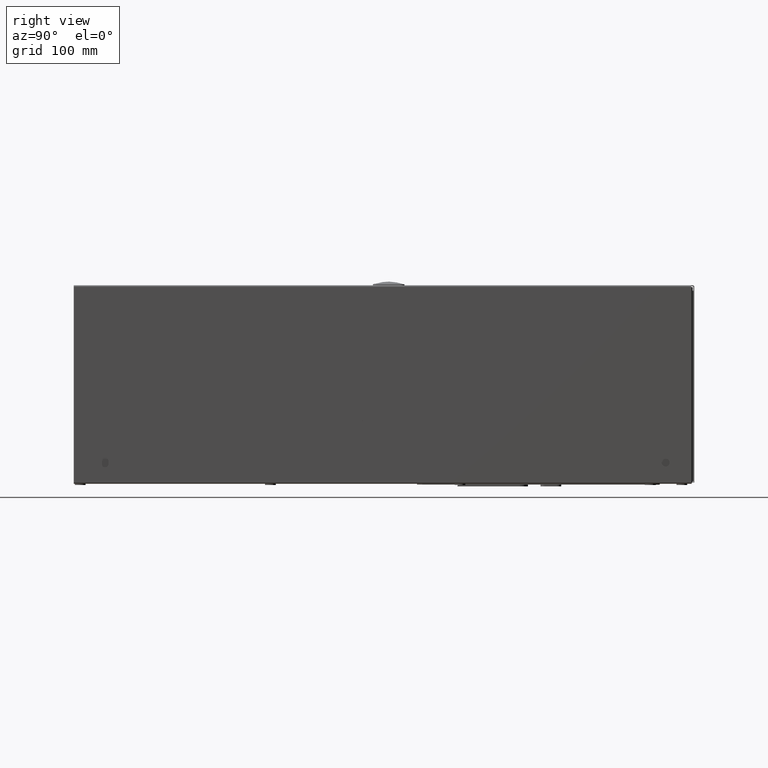
[diagram: clean part render]
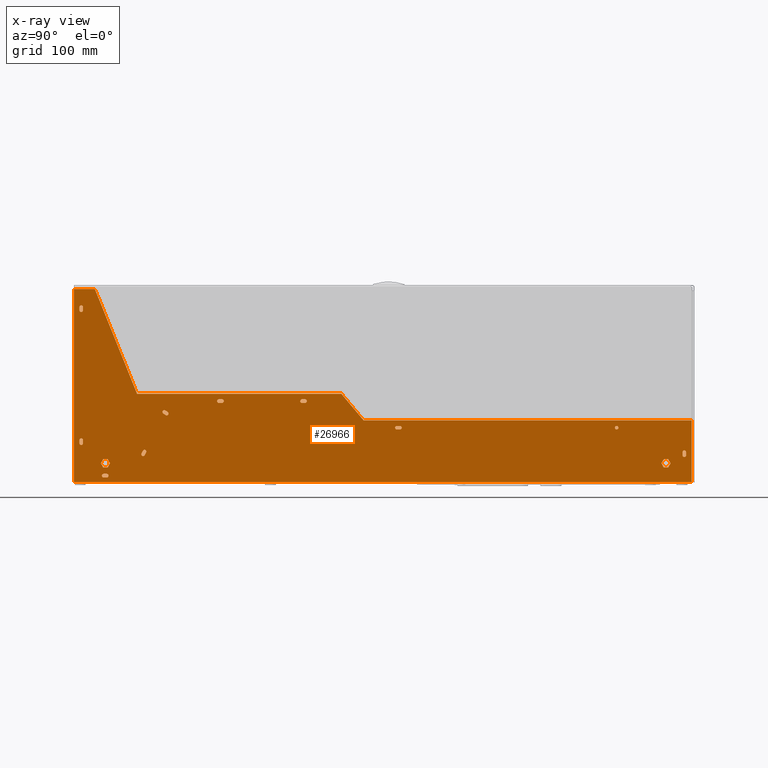
[diagram: x-ray — body ghosted, one internal face saturated and labeled with its STEP entity id]
A machine part, right view, then the same camera in x-ray: the body is ghosted and one INTERNAL B-rep face — a face not visible from any outside direction — is saturated and labeled: STEP entity #26966.
In plain terms, the highlighted planar face has unit normal (-1, 0, 0).
Its self-contained STEP definition (entity closure, byte-faithful):
#85 = EDGE_CURVE ( 'NONE', #51457, #16874, #27226, .T. ) ;
#148 = LINE ( 'NONE', #66029, #51761 ) ;
#221 = EDGE_CURVE ( 'NONE', #53032, #50033, #26750, .T. ) ;
#317 = ORIENTED_EDGE ( 'NONE', *, *, #36522, .F. ) ;
#364 = CIRCLE ( 'NONE', #42488, 0.08499999999997792655 ) ;
#539 = CIRCLE ( 'NONE', #15600, 0.08500000000000004774 ) ;
#562 = ORIENTED_EDGE ( 'NONE', *, *, #13152, .F. ) ;
#710 = ORIENTED_EDGE ( 'NONE', *, *, #50691, .F. ) ;
#760 = ORIENTED_EDGE ( 'NONE', *, *, #16194, .F. ) ;
#761 = DIRECTION ( 'NONE',  ( 0.000000000000000000, -2.571151052860489897E-14, -1.000000000000000000 ) ) ;
#1020 = CIRCLE ( 'NONE', #20466, 0.08267716535433253244 ) ;
#1225 = CARTESIAN_POINT ( 'NONE',  ( 7.678839000274488846, 14.14424671752352225, -3.209156299213287600 ) ) ;
#1309 = CARTESIAN_POINT ( 'NONE',  ( 7.678839000274488846, 0.6115061040310059148, -1.965091338582700686 ) ) ;
#1345 = DIRECTION ( 'NONE',  ( 0.000000000000000000, 1.000000000000000000, -4.908933904787180437E-14 ) ) ;
#1537 = EDGE_CURVE ( 'NONE', #50214, #23079, #16981, .T. ) ;
#1545 = CARTESIAN_POINT ( 'NONE',  ( 7.678839000274488846, 14.22924671752352310, -3.351656299213291668 ) ) ;
#1743 = LINE ( 'NONE', #27739, #48017 ) ;
#1764 = ORIENTED_EDGE ( 'NONE', *, *, #3104, .F. ) ;
#1861 = AXIS2_PLACEMENT_3D ( 'NONE', #1545, #63710, #17402 ) ;
#1968 = DIRECTION ( 'NONE',  ( 0.000000000000000000, -2.571151052860489897E-14, -1.000000000000000000 ) ) ;
#2109 = DIRECTION ( 'NONE',  ( 1.000000000000000000, 0.000000000000000000, 0.000000000000000000 ) ) ;
#2527 = CIRCLE ( 'NONE', #14377, 0.08499999999999977018 ) ;
#2547 = EDGE_CURVE ( 'NONE', #19375, #41234, #39371, .T. ) ;
#2622 = CIRCLE ( 'NONE', #40407, 0.08499999999997792655 ) ;
#2710 = VERTEX_POINT ( 'NONE', #27806 ) ;
#2712 = FACE_BOUND ( 'NONE', #34482, .T. ) ;
#2780 = EDGE_CURVE ( 'NONE', #66240, #51457, #54983, .T. ) ;
#3048 = FACE_BOUND ( 'NONE', #32005, .T. ) ;
#3073 = VERTEX_POINT ( 'NONE', #26074 ) ;
#3103 = EDGE_CURVE ( 'NONE', #53117, #11253, #61564, .T. ) ;
#3104 = EDGE_CURVE ( 'NONE', #6195, #31829, #61895, .T. ) ;
#3263 = CARTESIAN_POINT ( 'NONE',  ( 7.678839000274488846, -13.09039603709507915, -3.925558267715885563 ) ) ;
#3275 = LINE ( 'NONE', #29281, #24023 ) ;
#3356 = CARTESIAN_POINT ( 'NONE',  ( 7.678839000274488846, 13.25138173102687134, -3.550459842520330866 ) ) ;
#3496 = ORIENTED_EDGE ( 'NONE', *, *, #65884, .F. ) ;
#3919 = ORIENTED_EDGE ( 'NONE', *, *, #37224, .F. ) ;
#3965 = DIRECTION ( 'NONE',  ( 0.000000000000000000, 0.5000000000000421885, 0.8660254037844142827 ) ) ;
#3987 = LINE ( 'NONE', #51630, #63428 ) ;
#4123 = DIRECTION ( 'NONE',  ( 0.000000000000000000, -1.000000000000000000, 4.908933904787180437E-14 ) ) ;
#4311 = CIRCLE ( 'NONE', #35613, 0.08499999999999977018 ) ;
#4349 = ORIENTED_EDGE ( 'NONE', *, *, #44802, .F. ) ;
#4585 = CARTESIAN_POINT ( 'NONE',  ( 7.678839000274508386, 14.57373490649995951, -1.705603149607007873 ) ) ;
#4843 = VECTOR ( 'NONE', #17487, 39.37007874015748854 ) ;
#4934 = CARTESIAN_POINT ( 'NONE',  ( 7.678839000274488846, -3.884129266728318708, -0.7052488188974409544 ) ) ;
#5313 = CARTESIAN_POINT ( 'NONE',  ( 7.678839000274488846, 11.02167243603557090, -2.050091338583212686 ) ) ;
#5471 = CARTESIAN_POINT ( 'NONE',  ( 7.678839000274488846, -3.884129266728334695, -0.8752488188974409944 ) ) ;
#5794 = VECTOR ( 'NONE', #54500, 39.37007874015748143 ) ;
#6063 = DIRECTION ( 'NONE',  ( 1.000000000000000000, 0.000000000000000000, 0.000000000000000000 ) ) ;
#6195 = VERTEX_POINT ( 'NONE', #25938 ) ;
#6553 = CARTESIAN_POINT ( 'NONE',  ( 7.678839000274488846, -13.13888320373637875, -4.407605511810378296 ) ) ;
#6575 = ORIENTED_EDGE ( 'NONE', *, *, #57910, .F. ) ;
#6585 = CARTESIAN_POINT ( 'NONE',  ( 7.678839000274488846, -13.30701603966893742, -3.550361417322177360 ) ) ;
#6676 = CARTESIAN_POINT ( 'NONE',  ( 7.678839000274488846, -13.41532604095590564, -3.737959842519023468 ) ) ;
#6712 = LINE ( 'NONE', #47961, #38093 ) ;
#6948 = LINE ( 'NONE', #62740, #52695 ) ;
#7187 = LINE ( 'NONE', #22755, #36486 ) ;
#7419 = CIRCLE ( 'NONE', #18225, 0.08267716535433253244 ) ;
#7460 = AXIS2_PLACEMENT_3D ( 'NONE', #64605, #8143, #8488 ) ;
#7503 = LINE ( 'NONE', #49082, #23534 ) ;
#7882 = EDGE_CURVE ( 'NONE', #28254, #19375, #24662, .T. ) ;
#7898 = VECTOR ( 'NONE', #25937, 39.37007874015748143 ) ;
#8029 = CIRCLE ( 'NONE', #51243, 0.08500000000000004774 ) ;
#8041 = VERTEX_POINT ( 'NONE', #23158 ) ;
#8044 = CARTESIAN_POINT ( 'NONE',  ( 7.678839000274488846, 14.22924671752352310, -3.436656299213291188 ) ) ;
#8143 = DIRECTION ( 'NONE',  ( 1.000000000000000000, 0.000000000000000000, 0.000000000000000000 ) ) ;
#8150 = DIRECTION ( 'NONE',  ( 0.000000000000000000, -0.5000000000000440759, -0.8660254037844131725 ) ) ;
#8279 = DIRECTION ( 'NONE',  ( 1.000000000000000000, 0.000000000000000000, 0.000000000000000000 ) ) ;
#8430 = DIRECTION ( 'NONE',  ( 1.652139708929750287E-28, 1.000000000000000000, 0.000000000000000000 ) ) ;
#8488 = DIRECTION ( 'NONE',  ( 0.000000000000000000, -4.901256694515293345E-14, -1.000000000000000000 ) ) ;
#8533 = CARTESIAN_POINT ( 'NONE',  ( 7.678839000274488846, -10.45869534456702965, -1.374862579833504128 ) ) ;
#8759 = DIRECTION ( 'NONE',  ( 0.000000000000000000, -2.571151052860489897E-14, -1.000000000000000000 ) ) ;
#8776 = CIRCLE ( 'NONE', #60613, 0.08499999999999977018 ) ;
#8841 = DIRECTION ( 'NONE',  ( 0.000000000000000000, -0.8435285035524727748, 0.5370844102136328457 ) ) ;
#8861 = AXIS2_PLACEMENT_3D ( 'NONE', #28426, #38249, #48076 ) ;
#8979 = EDGE_CURVE ( 'NONE', #19755, #12384, #1743, .T. ) ;
#8988 = EDGE_CURVE ( 'NONE', #29924, #6195, #8029, .T. ) ;
#9086 = CARTESIAN_POINT ( 'NONE',  ( 7.678839000274508386, 0.7540061040310058749, -1.965091338582708458 ) ) ;
#9847 = CARTESIAN_POINT ( 'NONE',  ( 7.678839000274488846, -11.41329765683881980, -3.309128973801681362 ) ) ;
#10251 = EDGE_CURVE ( 'NONE', #31829, #62014, #20108, .T. ) ;
#10356 = LINE ( 'NONE', #50274, #26078 ) ;
#10446 = LINE ( 'NONE', #61501, #39762 ) ;
#10514 = CARTESIAN_POINT ( 'NONE',  ( 7.678839000274488846, -7.678637140744075218, -0.8752488188972560312 ) ) ;
#10521 = AXIS2_PLACEMENT_3D ( 'NONE', #48584, #38757, #49228 ) ;
#10643 = ORIENTED_EDGE ( 'NONE', *, *, #16366, .F. ) ;
#10718 = EDGE_CURVE ( 'NONE', #42960, #20123, #31704, .T. ) ;
#11075 = CARTESIAN_POINT ( 'NONE',  ( 7.678839000274488846, -14.43079265254933041, -2.639077559054539446 ) ) ;
#11253 = VERTEX_POINT ( 'NONE', #34762 ) ;
#11446 = AXIS2_PLACEMENT_3D ( 'NONE', #21636, #37179, #57142 ) ;
#11647 = CARTESIAN_POINT ( 'NONE',  ( 7.678839000274488846, -14.34579265254935265, -2.781577559054539517 ) ) ;
#11831 = EDGE_CURVE ( 'NONE', #2710, #61741, #6712, .T. ) ;
#11993 = EDGE_CURVE ( 'NONE', #60850, #8041, #2527, .T. ) ;
#12012 = EDGE_CURVE ( 'NONE', #41234, #25106, #56022, .T. ) ;
#12255 = DIRECTION ( 'NONE',  ( 0.000000000000000000, -2.571151052860489897E-14, -1.000000000000000000 ) ) ;
#12384 = VERTEX_POINT ( 'NONE', #66733 ) ;
#12419 = EDGE_LOOP ( 'NONE', ( #30476, #15052, #710, #50473, #14865 ) ) ;
#12445 = VERTEX_POINT ( 'NONE', #6553 ) ;
#12622 = EDGE_CURVE ( 'NONE', #23176, #16684, #18997, .T. ) ;
#12624 = EDGE_CURVE ( 'NONE', #58365, #3073, #12943, .T. ) ;
#12632 = LINE ( 'NONE', #6585, #20026 ) ;
#12746 = VECTOR ( 'NONE', #35001, 39.37007874015748854 ) ;
#12771 = EDGE_CURVE ( 'NONE', #47581, #46393, #31172, .T. ) ;
#12943 = LINE ( 'NONE', #8533, #21997 ) ;
#12977 = EDGE_CURVE ( 'NONE', #47874, #60310, #23243, .T. ) ;
#13031 = VECTOR ( 'NONE', #53462, 39.37007874015748854 ) ;
#13152 = EDGE_CURVE ( 'NONE', #46393, #38670, #15922, .T. ) ;
#13159 = VERTEX_POINT ( 'NONE', #10514 ) ;
#13173 = FACE_BOUND ( 'NONE', #16097, .T. ) ;
#13199 = ORIENTED_EDGE ( 'NONE', *, *, #2547, .T. ) ;
#13218 = EDGE_CURVE ( 'NONE', #24495, #30816, #2622, .T. ) ;
#13342 = CARTESIAN_POINT ( 'NONE',  ( 7.678839000274488846, -11.27082670072533510, -3.224007990776188937 ) ) ;
#13441 = CARTESIAN_POINT ( 'NONE',  ( 7.678839000274488846, 14.31424671752354172, -3.209156299213295593 ) ) ;
#13824 = DIRECTION ( 'NONE',  ( 1.000000000000000000, 0.000000000000000000, 0.000000000000000000 ) ) ;
#13825 = AXIS2_PLACEMENT_3D ( 'NONE', #24298, #13824, #8759 ) ;
#13987 = DIRECTION ( 'NONE',  ( 0.000000000000000000, -5.286776307738724068E-14, -1.000000000000000000 ) ) ;
#14053 = LINE ( 'NONE', #3263, #12746 ) ;
#14063 = AXIS2_PLACEMENT_3D ( 'NONE', #44111, #64702, #18390 ) ;
#14187 = ORIENTED_EDGE ( 'NONE', *, *, #8979, .T. ) ;
#14238 = ORIENTED_EDGE ( 'NONE', *, *, #3103, .F. ) ;
#14275 = DIRECTION ( 'NONE',  ( 0.000000000000000000, -0.4999999999999567013, 0.8660254037844635766 ) ) ;
#14322 = DIRECTION ( 'NONE',  ( 0.000000000000000000, -2.569960705150434518E-14, -1.000000000000000000 ) ) ;
#14377 = AXIS2_PLACEMENT_3D ( 'NONE', #61414, #51956, #25250 ) ;
#14630 = LINE ( 'NONE', #34243, #22201 ) ;
#14652 = EDGE_CURVE ( 'NONE', #57251, #53117, #10356, .T. ) ;
#14807 = CARTESIAN_POINT ( 'NONE',  ( 7.678839000274488846, -14.26079265254901607, 3.660135039370783883 ) ) ;
#14842 = CARTESIAN_POINT ( 'NONE',  ( 7.678839000274508386, 14.57373490650004122, -0.4457606299219693535 ) ) ;
#14865 = ORIENTED_EDGE ( 'NONE', *, *, #35482, .F. ) ;
#15052 = ORIENTED_EDGE ( 'NONE', *, *, #17667, .F. ) ;
#15254 = DIRECTION ( 'NONE',  ( 0.000000000000000000, -0.4999999999999567013, 0.8660254037844635766 ) ) ;
#15488 = VERTEX_POINT ( 'NONE', #14807 ) ;
#15600 = AXIS2_PLACEMENT_3D ( 'NONE', #47664, #6063, #43273 ) ;
#15922 = LINE ( 'NONE', #61570, #66277 ) ;
#16097 = EDGE_LOOP ( 'NONE', ( #40568, #33581, #59989, #53123, #26514 ) ) ;
#16187 = ORIENTED_EDGE ( 'NONE', *, *, #21001, .F. ) ;
#16194 = EDGE_CURVE ( 'NONE', #41408, #51894, #43460, .T. ) ;
#16366 = EDGE_CURVE ( 'NONE', #16684, #24827, #27043, .T. ) ;
#16684 = VERTEX_POINT ( 'NONE', #48437 ) ;
#16834 = VERTEX_POINT ( 'NONE', #1309 ) ;
#16874 = VERTEX_POINT ( 'NONE', #21573 ) ;
#16932 = CIRCLE ( 'NONE', #1861, 0.08499999999999977018 ) ;
#16965 = ORIENTED_EDGE ( 'NONE', *, *, #7882, .T. ) ;
#16973 = ORIENTED_EDGE ( 'NONE', *, *, #60232, .F. ) ;
#16981 = LINE ( 'NONE', #21740, #39679 ) ;
#17278 = DIRECTION ( 'NONE',  ( -3.365567419113665518E-15, -4.908919198744210044E-14, -1.000000000000000000 ) ) ;
#17402 = DIRECTION ( 'NONE',  ( 0.000000000000000000, -2.571151052860489897E-14, -1.000000000000000000 ) ) ;
#17434 = DIRECTION ( 'NONE',  ( 0.000000000000000000, 0.4743861485655387900, 0.8803168645715895302 ) ) ;
#17487 = DIRECTION ( 'NONE',  ( 0.000000000000000000, 0.4999999999999567013, -0.8660254037844635766 ) ) ;
#17624 = CARTESIAN_POINT ( 'NONE',  ( 7.678839000274488846, 13.46788808197293363, -3.925459842520342857 ) ) ;
#17667 = EDGE_CURVE ( 'NONE', #15488, #42960, #27230, .T. ) ;
#17735 = EDGE_LOOP ( 'NONE', ( #41535, #44930, #46576, #52634, #51140 ) ) ;
#17897 = LINE ( 'NONE', #24311, #27891 ) ;
#17962 = CARTESIAN_POINT ( 'NONE',  ( 7.678839000274488846, -7.821137140744075289, -0.8752488188972480376 ) ) ;
#18225 = AXIS2_PLACEMENT_3D ( 'NONE', #5313, #31332, #31656 ) ;
#18357 = CARTESIAN_POINT ( 'NONE',  ( 7.678839000274508386, -0.9644072904420354364, -1.705603149606246260 ) ) ;
#18390 = DIRECTION ( 'NONE',  ( 0.000000000000000000, -5.142302105720963385E-14, -1.000000000000000000 ) ) ;
#18778 = EDGE_LOOP ( 'NONE', ( #52397, #25318, #21611, #19439, #6575 ) ) ;
#18854 = EDGE_CURVE ( 'NONE', #50033, #45906, #48084, .T. ) ;
#18997 = LINE ( 'NONE', #50123, #5794 ) ;
#19058 = CARTESIAN_POINT ( 'NONE',  ( 7.678839000274488846, 14.57373490649995951, -4.627256692914094138 ) ) ;
#19196 = CARTESIAN_POINT ( 'NONE',  ( 7.678839000274488846, -11.48815924847167480, -3.268787474553583206 ) ) ;
#19290 = CARTESIAN_POINT ( 'NONE',  ( 7.678839000274508386, -7.678637140744055678, -0.7052488188972558802 ) ) ;
#19375 = VERTEX_POINT ( 'NONE', #4585 ) ;
#19439 = ORIENTED_EDGE ( 'NONE', *, *, #52620, .F. ) ;
#19552 = CARTESIAN_POINT ( 'NONE',  ( 7.678839000274488846, -10.41304316969889676, -1.303162657031608385 ) ) ;
#19579 = ORIENTED_EDGE ( 'NONE', *, *, #20007, .F. ) ;
#19721 = CARTESIAN_POINT ( 'NONE',  ( 7.678839000274488846, 14.31424671752350264, -3.351656299213295220 ) ) ;
#19755 = VERTEX_POINT ( 'NONE', #46083 ) ;
#20007 = EDGE_CURVE ( 'NONE', #51894, #46332, #8776, .T. ) ;
#20026 = VECTOR ( 'NONE', #48511, 39.37007874015748854 ) ;
#20083 = DIRECTION ( 'NONE',  ( 0.000000000000000000, 0.4999999999999656386, -0.8660254037844584696 ) ) ;
#20108 = CIRCLE ( 'NONE', #11446, 0.08500000000000004774 ) ;
#20123 = VERTEX_POINT ( 'NONE', #58531 ) ;
#20354 = CARTESIAN_POINT ( 'NONE',  ( 7.678839000274488846, 13.25138173102683048, -3.925459842520327314 ) ) ;
#20438 = CARTESIAN_POINT ( 'NONE',  ( 7.678839000274488846, 13.14312855555377979, -3.737959842520327314 ) ) ;
#20466 = AXIS2_PLACEMENT_3D ( 'NONE', #25456, #46463, #13987 ) ;
#20740 = DIRECTION ( 'NONE',  ( 0.000000000000000000, 1.000000000000000000, -4.908933904787180437E-14 ) ) ;
#21001 = EDGE_CURVE ( 'NONE', #24827, #13159, #3275, .T. ) ;
#21174 = VERTEX_POINT ( 'NONE', #63267 ) ;
#21234 = EDGE_CURVE ( 'NONE', #22348, #55736, #54238, .T. ) ;
#21561 = CARTESIAN_POINT ( 'NONE',  ( 7.678839000274488846, -14.43079265254903554, 3.660135039370795429 ) ) ;
#21573 = CARTESIAN_POINT ( 'NONE',  ( 7.678839000274488846, 14.14424671752350271, -3.351656299213287671 ) ) ;
#21611 = ORIENTED_EDGE ( 'NONE', *, *, #11831, .F. ) ;
#21636 = CARTESIAN_POINT ( 'NONE',  ( 7.678839000274488846, -3.884129266728318708, -0.7902488188974410299 ) ) ;
#21671 = DIRECTION ( 'NONE',  ( 0.000000000000000000, -1.000000000000000000, 4.908933904787180437E-14 ) ) ;
#21740 = CARTESIAN_POINT ( 'NONE',  ( 7.678839000274488846, 0.7540061040309981033, -2.135091338582708609 ) ) ;
#21790 = ORIENTED_EDGE ( 'NONE', *, *, #45081, .F. ) ;
#21872 = AXIS2_PLACEMENT_3D ( 'NONE', #63932, #38253, #23030 ) ;
#21997 = VECTOR ( 'NONE', #64979, 39.37007874015748143 ) ;
#22068 = CARTESIAN_POINT ( 'NONE',  ( 7.678839000274488846, 14.22924671752352310, -3.209156299213291597 ) ) ;
#22201 = VECTOR ( 'NONE', #40023, 39.37007874015748143 ) ;
#22245 = DIRECTION ( 'NONE',  ( 0.000000000000000000, 4.908933904787180437E-14, 1.000000000000000000 ) ) ;
#22348 = VERTEX_POINT ( 'NONE', #8044 ) ;
#22518 = DIRECTION ( 'NONE',  ( 0.000000000000000000, -2.571151052860489897E-14, -1.000000000000000000 ) ) ;
#22755 = CARTESIAN_POINT ( 'NONE',  ( 7.678839000274488846, 0.7540061040310058749, -1.965091338582708458 ) ) ;
#23006 = CARTESIAN_POINT ( 'NONE',  ( 7.678839000274488846, -11.42054988399108240, -3.143324992279992180 ) ) ;
#23030 = DIRECTION ( 'NONE',  ( 0.000000000000000000, -2.571151052860489897E-14, -1.000000000000000000 ) ) ;
#23079 = VERTEX_POINT ( 'NONE', #34150 ) ;
#23114 = EDGE_CURVE ( 'NONE', #3073, #24495, #364, .T. ) ;
#23158 = CARTESIAN_POINT ( 'NONE',  ( 7.678839000274488846, -14.26079265254903561, 3.517635039370780259 ) ) ;
#23176 = VERTEX_POINT ( 'NONE', #19290 ) ;
#23243 = LINE ( 'NONE', #27662, #51204 ) ;
#23289 = CARTESIAN_POINT ( 'NONE',  ( 7.678839000274488846, -3.741629266728334624, -0.8752488188974488770 ) ) ;
#23301 = CARTESIAN_POINT ( 'NONE',  ( 7.678839000274488846, 14.57373490649982273, -4.666626771654251549 ) ) ;
#23445 = VERTEX_POINT ( 'NONE', #51830 ) ;
#23534 = VECTOR ( 'NONE', #8150, 39.37007874015748854 ) ;
#23717 = CARTESIAN_POINT ( 'NONE',  ( 7.678839000274488846, -11.33843606520594527, -3.349470473049779518 ) ) ;
#23948 = CARTESIAN_POINT ( 'NONE',  ( 7.678839000274488846, -3.741629266728334624, -0.8752488188974488770 ) ) ;
#23982 = FACE_BOUND ( 'NONE', #40882, .T. ) ;
#24023 = VECTOR ( 'NONE', #28606, 39.37007874015748143 ) ;
#24258 = EDGE_CURVE ( 'NONE', #12445, #41408, #66833, .T. ) ;
#24281 = AXIS2_PLACEMENT_3D ( 'NONE', #19552, #40849, #41201 ) ;
#24298 = CARTESIAN_POINT ( 'NONE',  ( 7.678839000274488846, -14.34579265254933311, -2.639077559054539446 ) ) ;
#24311 = CARTESIAN_POINT ( 'NONE',  ( 7.678839000274488846, 14.57373490649982273, -4.627256692914094138 ) ) ;
#24377 = CARTESIAN_POINT ( 'NONE',  ( 7.678839000274488846, -10.24718818307452750, -1.307997262685108408 ) ) ;
#24495 = VERTEX_POINT ( 'NONE', #65118 ) ;
#24576 = VECTOR ( 'NONE', #63366, 39.37007874015748143 ) ;
#24662 = LINE ( 'NONE', #14842, #26339 ) ;
#24754 = CARTESIAN_POINT ( 'NONE',  ( 7.678839000274488846, -12.98208603580811094, -3.737959842519043452 ) ) ;
#24781 = EDGE_CURVE ( 'NONE', #39722, #28908, #7503, .T. ) ;
#24827 = VERTEX_POINT ( 'NONE', #17962 ) ;
#25046 = CARTESIAN_POINT ( 'NONE',  ( 7.678839000274488846, 14.31424671752354172, -3.209156299213295593 ) ) ;
#25106 = VERTEX_POINT ( 'NONE', #44434 ) ;
#25250 = DIRECTION ( 'NONE',  ( 0.000000000000000000, -2.571151052860489897E-14, -1.000000000000000000 ) ) ;
#25252 = AXIS2_PLACEMENT_3D ( 'NONE', #34689, #55311, #29284 ) ;
#25293 = DIRECTION ( 'NONE',  ( 0.000000000000000000, -4.908933904787180437E-14, -1.000000000000000000 ) ) ;
#25318 = ORIENTED_EDGE ( 'NONE', *, *, #30149, .F. ) ;
#25456 = CARTESIAN_POINT ( 'NONE',  ( 7.678839000274488846, 11.02167243603557090, -2.050091338583212686 ) ) ;
#25521 = CARTESIAN_POINT ( 'NONE',  ( 7.678839000274488846, -13.09039603709504007, -3.550361417322184909 ) ) ;
#25671 = CARTESIAN_POINT ( 'NONE',  ( 7.678839000274488846, 0.6115061040309961449, -2.135091338582700615 ) ) ;
#25938 = CARTESIAN_POINT ( 'NONE',  ( 7.678839000274508386, -3.741629266728318637, -0.7052488188974487260 ) ) ;
#25937 = DIRECTION ( 'NONE',  ( 2.578174219354310518E-15, -0.6427876096865010602, 0.7660444431190102099 ) ) ;
#25956 = EDGE_LOOP ( 'NONE', ( #28641, #32292, #28500, #36341 ) ) ;
#26074 = CARTESIAN_POINT ( 'NONE',  ( 7.678839000274488846, -10.33849253281080571, -1.451397108288947191 ) ) ;
#26078 = VECTOR ( 'NONE', #3965, 39.37007874015748143 ) ;
#26339 = VECTOR ( 'NONE', #54744, 39.37007874015748143 ) ;
#26398 = DIRECTION ( 'NONE',  ( 1.000000000000000000, 0.000000000000000000, 0.000000000000000000 ) ) ;
#26514 = ORIENTED_EDGE ( 'NONE', *, *, #23114, .F. ) ;
#26750 = CIRCLE ( 'NONE', #48389, 0.08503937007875309040 ) ;
#26766 = VECTOR ( 'NONE', #65157, 39.37007874015748143 ) ;
#26966 = ADVANCED_FACE ( 'NONE', ( #39214, #2712, #49019, #40227, #3048, #59807, #13173, #54404, #65890, #64879, #23982, #44628, #54737 ), #28709, .F. ) ;
#27043 = CIRCLE ( 'NONE', #14063, 0.08500000000000004774 ) ;
#27226 = LINE ( 'NONE', #1225, #24576 ) ;
#27230 = CIRCLE ( 'NONE', #8861, 0.08499999999999977018 ) ;
#27400 = ORIENTED_EDGE ( 'NONE', *, *, #29032, .F. ) ;
#27475 = DIRECTION ( 'NONE',  ( 1.000000000000000000, 0.000000000000000000, 0.000000000000000000 ) ) ;
#27662 = CARTESIAN_POINT ( 'NONE',  ( 7.678839000274488846, -13.69870603838161571, 4.514869291339260293 ) ) ;
#27739 = CARTESIAN_POINT ( 'NONE',  ( 7.678839000274488846, -14.69870603838206691, -4.666626771652810923 ) ) ;
#27793 = ORIENTED_EDGE ( 'NONE', *, *, #54424, .T. ) ;
#27806 = CARTESIAN_POINT ( 'NONE',  ( 7.678839000274488846, -14.26079265254935180, -2.781577559054547510 ) ) ;
#27891 = VECTOR ( 'NONE', #43633, 39.37007874015748143 ) ;
#28198 = ORIENTED_EDGE ( 'NONE', *, *, #24258, .F. ) ;
#28254 = VERTEX_POINT ( 'NONE', #19058 ) ;
#28389 = DIRECTION ( 'NONE',  ( 0.000000000000000000, -1.000000000000000000, 4.908933904787180437E-14 ) ) ;
#28419 = ORIENTED_EDGE ( 'NONE', *, *, #2780, .F. ) ;
#28426 = CARTESIAN_POINT ( 'NONE',  ( 7.678839000274488846, -14.34579265254901692, 3.660135039370787435 ) ) ;
#28500 = ORIENTED_EDGE ( 'NONE', *, *, #1537, .F. ) ;
#28606 = DIRECTION ( 'NONE',  ( 0.000000000000000000, 1.000000000000000000, -4.908933904787180437E-14 ) ) ;
#28641 = ORIENTED_EDGE ( 'NONE', *, *, #55049, .F. ) ;
#28690 = EDGE_CURVE ( 'NONE', #55863, #64094, #52058, .T. ) ;
#28709 = PLANE ( 'NONE',  #43264 ) ;
#28810 = CARTESIAN_POINT ( 'NONE',  ( 7.678839000274488846, -12.98208603580811094, -3.737959842519043452 ) ) ;
#28908 = VERTEX_POINT ( 'NONE', #37536 ) ;
#29032 = EDGE_CURVE ( 'NONE', #28254, #12384, #17897, .T. ) ;
#29049 = CARTESIAN_POINT ( 'NONE',  ( 7.678839000274488846, 13.46788808197297271, -3.550459842520342413 ) ) ;
#29236 = CARTESIAN_POINT ( 'NONE',  ( 7.678839000274488846, -13.41532604095592518, -3.737959842519023468 ) ) ;
#29281 = CARTESIAN_POINT ( 'NONE',  ( 7.678839000274488846, -7.678637140744075218, -0.8752488188972560312 ) ) ;
#29284 = DIRECTION ( 'NONE',  ( 0.000000000000000000, -2.571151052860489897E-14, -1.000000000000000000 ) ) ;
#29342 = EDGE_CURVE ( 'NONE', #47761, #36916, #1020, .T. ) ;
#29425 = ORIENTED_EDGE ( 'NONE', *, *, #29342, .F. ) ;
#29560 = EDGE_CURVE ( 'NONE', #16834, #50214, #36631, .T. ) ;
#29667 = DIRECTION ( 'NONE',  ( 0.000000000000000000, 4.908933904787180437E-14, 1.000000000000000000 ) ) ;
#29917 = VECTOR ( 'NONE', #8841, 39.37007874015748143 ) ;
#29924 = VERTEX_POINT ( 'NONE', #23289 ) ;
#30077 = VECTOR ( 'NONE', #39704, 39.37007874015748143 ) ;
#30081 = CARTESIAN_POINT ( 'NONE',  ( 7.678839000274488846, -14.43079265254933041, -2.639077559054539446 ) ) ;
#30115 = VERTEX_POINT ( 'NONE', #9086 ) ;
#30149 = EDGE_CURVE ( 'NONE', #61741, #50243, #53780, .T. ) ;
#30337 = CARTESIAN_POINT ( 'NONE',  ( 7.678839000274468418, 6.913598279536377511, -11.09424459010620012 ) ) ;
#30476 = ORIENTED_EDGE ( 'NONE', *, *, #10718, .F. ) ;
#30533 = ORIENTED_EDGE ( 'NONE', *, *, #12622, .F. ) ;
#30757 = CIRCLE ( 'NONE', #24281, 0.08499999999997792655 ) ;
#30816 = VERTEX_POINT ( 'NONE', #24377 ) ;
#31099 = CARTESIAN_POINT ( 'NONE',  ( 7.678839000274488846, -14.69870603838161394, 4.514869291339307367 ) ) ;
#31155 = CARTESIAN_POINT ( 'NONE',  ( 7.678839000274488846, -10.29284035794267815, -1.379697185487047451 ) ) ;
#31172 = LINE ( 'NONE', #24754, #37156 ) ;
#31332 = DIRECTION ( 'NONE',  ( 1.000000000000000000, 0.000000000000000000, 0.000000000000000000 ) ) ;
#31383 = LINE ( 'NONE', #11075, #58773 ) ;
#31502 = DIRECTION ( 'NONE',  ( 0.000000000000000000, -0.3739274876789470126, 0.9274579418809839604 ) ) ;
#31556 = AXIS2_PLACEMENT_3D ( 'NONE', #9847, #62209, #40297 ) ;
#31656 = DIRECTION ( 'NONE',  ( 0.000000000000000000, -5.286776307738724068E-14, -1.000000000000000000 ) ) ;
#31704 = LINE ( 'NONE', #21561, #51418 ) ;
#31829 = VERTEX_POINT ( 'NONE', #4934 ) ;
#32005 = EDGE_LOOP ( 'NONE', ( #3496, #19579, #760, #28198 ) ) ;
#32292 = ORIENTED_EDGE ( 'NONE', *, *, #41966, .F. ) ;
#32744 = ORIENTED_EDGE ( 'NONE', *, *, #45601, .T. ) ;
#33160 = VECTOR ( 'NONE', #41267, 39.37007874015748143 ) ;
#33491 = CARTESIAN_POINT ( 'NONE',  ( 7.678839000274488846, -3.741629266728318637, -0.7902488188974469141 ) ) ;
#33581 = ORIENTED_EDGE ( 'NONE', *, *, #42264, .F. ) ;
#33765 = DIRECTION ( 'NONE',  ( 0.000000000000000000, 1.000000000000000000, -4.908933904787180437E-14 ) ) ;
#34150 = CARTESIAN_POINT ( 'NONE',  ( 7.678839000274488846, 0.7540061040309981033, -2.135091338582708609 ) ) ;
#34243 = CARTESIAN_POINT ( 'NONE',  ( 7.678839000274488846, -13.30701603966897650, -3.925558267715874017 ) ) ;
#34326 = CARTESIAN_POINT ( 'NONE',  ( 7.678839000274488846, -13.28138320373637882, -4.237605511810362380 ) ) ;
#34467 = DIRECTION ( 'NONE',  ( -1.000000000000000000, 1.652139708929750287E-28, 3.365567419113665518E-15 ) ) ;
#34482 = EDGE_LOOP ( 'NONE', ( #317, #3919, #562, #62928, #21790, #58104 ) ) ;
#34689 = CARTESIAN_POINT ( 'NONE',  ( 7.678839000274488846, -14.34579265254901692, 3.517635039370787808 ) ) ;
#34762 = CARTESIAN_POINT ( 'NONE',  ( 7.678839000274488846, 13.46788808197297271, -3.550459842520342413 ) ) ;
#35001 = DIRECTION ( 'NONE',  ( 0.000000000000000000, 0.5000000000000440759, 0.8660254037844131725 ) ) ;
#35210 = EDGE_LOOP ( 'NONE', ( #30533, #4349, #16187, #10643 ) ) ;
#35482 = EDGE_CURVE ( 'NONE', #20123, #60850, #58688, .T. ) ;
#35606 = CARTESIAN_POINT ( 'NONE',  ( 7.678839000274488846, -11.41329765683880026, -3.394168343880433092 ) ) ;
#35613 = AXIS2_PLACEMENT_3D ( 'NONE', #11647, #42117, #36699 ) ;
#35633 = ORIENTED_EDGE ( 'NONE', *, *, #38425, .F. ) ;
#35735 = LINE ( 'NONE', #45886, #52644 ) ;
#36067 = VERTEX_POINT ( 'NONE', #62863 ) ;
#36341 = ORIENTED_EDGE ( 'NONE', *, *, #29560, .F. ) ;
#36467 = EDGE_CURVE ( 'NONE', #50243, #54694, #31383, .T. ) ;
#36486 = VECTOR ( 'NONE', #48790, 39.37007874015748143 ) ;
#36522 = EDGE_CURVE ( 'NONE', #53033, #23445, #52997, .T. ) ;
#36622 = CARTESIAN_POINT ( 'NONE',  ( 7.678839000274488846, -13.30701603966893742, -3.550361417322177360 ) ) ;
#36631 = CIRCLE ( 'NONE', #7460, 0.08500000000000004774 ) ;
#36699 = DIRECTION ( 'NONE',  ( 0.000000000000000000, -2.571151052860489897E-14, -1.000000000000000000 ) ) ;
#36916 = VERTEX_POINT ( 'NONE', #47992 ) ;
#37156 = VECTOR ( 'NONE', #14275, 39.37007874015748854 ) ;
#37179 = DIRECTION ( 'NONE',  ( 1.000000000000000000, 0.000000000000000000, 0.000000000000000000 ) ) ;
#37224 = EDGE_CURVE ( 'NONE', #38670, #53033, #12632, .T. ) ;
#37392 = EDGE_LOOP ( 'NONE', ( #16973, #45576, #54483, #14238, #57343, #50327 ) ) ;
#37426 = EDGE_CURVE ( 'NONE', #23445, #21174, #14630, .T. ) ;
#37437 = CARTESIAN_POINT ( 'NONE',  ( 7.678839000274488846, -13.13888320373637875, -4.322605511810370338 ) ) ;
#37536 = CARTESIAN_POINT ( 'NONE',  ( 7.678839000274488846, 13.14312855555377979, -3.737959842520327314 ) ) ;
#37702 = EDGE_CURVE ( 'NONE', #62014, #29924, #64176, .T. ) ;
#38093 = VECTOR ( 'NONE', #22245, 39.37007874015748143 ) ;
#38249 = DIRECTION ( 'NONE',  ( 1.000000000000000000, 0.000000000000000000, 0.000000000000000000 ) ) ;
#38253 = DIRECTION ( 'NONE',  ( 1.000000000000000000, 0.000000000000000000, 0.000000000000000000 ) ) ;
#38425 = EDGE_CURVE ( 'NONE', #16874, #22348, #16932, .T. ) ;
#38670 = VERTEX_POINT ( 'NONE', #36622 ) ;
#38757 = DIRECTION ( 'NONE',  ( 1.000000000000000000, 0.000000000000000000, 0.000000000000000000 ) ) ;
#38959 = CARTESIAN_POINT ( 'NONE',  ( 7.678839000274488846, -14.26079265254933226, -2.639077559054547883 ) ) ;
#39214 = FACE_BOUND ( 'NONE', #37392, .T. ) ;
#39371 = LINE ( 'NONE', #59970, #30077 ) ;
#39679 = VECTOR ( 'NONE', #42379, 39.37007874015748143 ) ;
#39704 = DIRECTION ( 'NONE',  ( -4.907676333453659915E-34, -1.000000000000000000, 4.908933904787180437E-14 ) ) ;
#39722 = VERTEX_POINT ( 'NONE', #3356 ) ;
#39762 = VECTOR ( 'NONE', #1345, 39.37007874015748143 ) ;
#40023 = DIRECTION ( 'NONE',  ( 0.000000000000000000, 1.000000000000000000, -4.467540318589475007E-14 ) ) ;
#40092 = ORIENTED_EDGE ( 'NONE', *, *, #37702, .F. ) ;
#40227 = FACE_BOUND ( 'NONE', #18778, .T. ) ;
#40297 = DIRECTION ( 'NONE',  ( 0.000000000000000000, -2.569960705150434518E-14, -1.000000000000000000 ) ) ;
#40407 = AXIS2_PLACEMENT_3D ( 'NONE', #31155, #26398, #46720 ) ;
#40568 = ORIENTED_EDGE ( 'NONE', *, *, #12624, .F. ) ;
#40760 = CARTESIAN_POINT ( 'NONE',  ( 7.678839000274488846, -13.28138320373637882, -4.407605511810370302 ) ) ;
#40761 = CIRCLE ( 'NONE', #10521, 0.08503937007875309040 ) ;
#40820 = AXIS2_PLACEMENT_3D ( 'NONE', #45911, #66840, #46913 ) ;
#40849 = DIRECTION ( 'NONE',  ( 1.000000000000000000, 0.000000000000000000, 0.000000000000000000 ) ) ;
#40882 = EDGE_LOOP ( 'NONE', ( #49748, #29425 ) ) ;
#41201 = DIRECTION ( 'NONE',  ( 0.000000000000000000, -2.571151052861150647E-14, -1.000000000000000000 ) ) ;
#41234 = VERTEX_POINT ( 'NONE', #18357 ) ;
#41267 = DIRECTION ( 'NONE',  ( 0.000000000000000000, -1.000000000000000000, 4.908933904787180437E-14 ) ) ;
#41408 = VERTEX_POINT ( 'NONE', #57205 ) ;
#41535 = ORIENTED_EDGE ( 'NONE', *, *, #59978, .F. ) ;
#41966 = EDGE_CURVE ( 'NONE', #23079, #30115, #539, .T. ) ;
#42117 = DIRECTION ( 'NONE',  ( 1.000000000000000000, 0.000000000000000000, 0.000000000000000000 ) ) ;
#42208 = DIRECTION ( 'NONE',  ( 0.000000000000000000, -4.908933904787180437E-14, -1.000000000000000000 ) ) ;
#42264 = EDGE_CURVE ( 'NONE', #36067, #58365, #30757, .T. ) ;
#42379 = DIRECTION ( 'NONE',  ( 0.000000000000000000, 1.000000000000000000, -4.908933904787180437E-14 ) ) ;
#42488 = AXIS2_PLACEMENT_3D ( 'NONE', #63924, #2109, #43349 ) ;
#42960 = VERTEX_POINT ( 'NONE', #65585 ) ;
#43033 = CARTESIAN_POINT ( 'NONE',  ( 7.678839000274488846, -11.48815924847167480, -3.268787474553583206 ) ) ;
#43264 = AXIS2_PLACEMENT_3D ( 'NONE', #23301, #34467, #8430 ) ;
#43273 = DIRECTION ( 'NONE',  ( 0.000000000000000000, -4.820908224113402701E-14, -1.000000000000000000 ) ) ;
#43349 = DIRECTION ( 'NONE',  ( 0.000000000000000000, -2.571151052861150647E-14, -1.000000000000000000 ) ) ;
#43460 = LINE ( 'NONE', #58953, #55036 ) ;
#43633 = DIRECTION ( 'NONE',  ( -1.261272817697591908E-31, -1.000000000000000000, 4.905200908281959818E-14 ) ) ;
#43975 = CARTESIAN_POINT ( 'NONE',  ( 7.678839000274508386, -11.69870603838185019, -0.4457606299206787193 ) ) ;
#44111 = CARTESIAN_POINT ( 'NONE',  ( 7.678839000274488846, -7.821137140744075289, -0.7902488188972480732 ) ) ;
#44192 = AXIS2_PLACEMENT_3D ( 'NONE', #22068, #27475, #12255 ) ;
#44206 = ORIENTED_EDGE ( 'NONE', *, *, #12977, .T. ) ;
#44434 = CARTESIAN_POINT ( 'NONE',  ( 7.678839000274508386, -2.021540684051141845, -0.4457606299211543388 ) ) ;
#44571 = CARTESIAN_POINT ( 'NONE',  ( 7.678839000274488846, 14.14424671752352225, -3.209156299213287600 ) ) ;
#44628 = FACE_BOUND ( 'NONE', #65788, .T. ) ;
#44802 = EDGE_CURVE ( 'NONE', #13159, #23176, #51559, .T. ) ;
#44930 = ORIENTED_EDGE ( 'NONE', *, *, #28690, .F. ) ;
#45081 = EDGE_CURVE ( 'NONE', #21174, #47581, #14053, .T. ) ;
#45307 = VECTOR ( 'NONE', #4123, 39.37007874015748143 ) ;
#45576 = ORIENTED_EDGE ( 'NONE', *, *, #24781, .F. ) ;
#45601 = EDGE_CURVE ( 'NONE', #60310, #19755, #47318, .T. ) ;
#45886 = CARTESIAN_POINT ( 'NONE',  ( 7.678839000274508386, -14.69870603838185019, -0.4457606299205315037 ) ) ;
#45906 = VERTEX_POINT ( 'NONE', #19196 ) ;
#45911 = CARTESIAN_POINT ( 'NONE',  ( 7.678839000274488846, -7.678637140744075218, -0.7902488188972540684 ) ) ;
#46078 = EDGE_CURVE ( 'NONE', #45906, #55863, #40761, .T. ) ;
#46083 = CARTESIAN_POINT ( 'NONE',  ( 7.678839000274488846, -14.69870603838161394, 4.514869291339307367 ) ) ;
#46332 = VERTEX_POINT ( 'NONE', #40760 ) ;
#46390 = CARTESIAN_POINT ( 'NONE',  ( 7.678839000274488846, 13.57614125744602340, -3.737959842520334863 ) ) ;
#46393 = VERTEX_POINT ( 'NONE', #25521 ) ;
#46463 = DIRECTION ( 'NONE',  ( 1.000000000000000000, 0.000000000000000000, 0.000000000000000000 ) ) ;
#46492 = LINE ( 'NONE', #20438, #50595 ) ;
#46576 = ORIENTED_EDGE ( 'NONE', *, *, #46078, .F. ) ;
#46720 = DIRECTION ( 'NONE',  ( 0.000000000000000000, -2.571151052861150647E-14, -1.000000000000000000 ) ) ;
#46913 = DIRECTION ( 'NONE',  ( 0.000000000000000000, -5.142302105720963385E-14, -1.000000000000000000 ) ) ;
#47318 = LINE ( 'NONE', #31099, #33160 ) ;
#47581 = VERTEX_POINT ( 'NONE', #28810 ) ;
#47664 = CARTESIAN_POINT ( 'NONE',  ( 7.678839000274488846, 0.7540061040309999907, -2.050091338582708644 ) ) ;
#47761 = VERTEX_POINT ( 'NONE', #48058 ) ;
#47874 = VERTEX_POINT ( 'NONE', #43975 ) ;
#47935 = DIRECTION ( 'NONE',  ( 1.000000000000000000, 0.000000000000000000, 0.000000000000000000 ) ) ;
#47961 = CARTESIAN_POINT ( 'NONE',  ( 7.678839000274488846, -14.26079265254933226, -2.639077559054547883 ) ) ;
#47992 = CARTESIAN_POINT ( 'NONE',  ( 7.678839000274488846, 11.02167243603559044, -2.132768503937543692 ) ) ;
#48017 = VECTOR ( 'NONE', #17278, 39.37007874015748143 ) ;
#48022 = ORIENTED_EDGE ( 'NONE', *, *, #50555, .F. ) ;
#48058 = CARTESIAN_POINT ( 'NONE',  ( 7.678839000274488846, 11.02167243603559044, -1.967414173228881902 ) ) ;
#48076 = DIRECTION ( 'NONE',  ( 0.000000000000000000, -2.571151052860489897E-14, -1.000000000000000000 ) ) ;
#48084 = LINE ( 'NONE', #43033, #13031 ) ;
#48387 = DIRECTION ( 'NONE',  ( 1.000000000000000000, 0.000000000000000000, 0.000000000000000000 ) ) ;
#48389 = AXIS2_PLACEMENT_3D ( 'NONE', #55895, #54896, #14322 ) ;
#48437 = CARTESIAN_POINT ( 'NONE',  ( 7.678839000274488846, -7.821137140744055749, -0.7052488188972479977 ) ) ;
#48511 = DIRECTION ( 'NONE',  ( 0.000000000000000000, -0.5000000000000440759, -0.8660254037844131725 ) ) ;
#48584 = CARTESIAN_POINT ( 'NONE',  ( 7.678839000274488846, -11.41329765683881980, -3.309128973801681362 ) ) ;
#48790 = DIRECTION ( 'NONE',  ( 0.000000000000000000, -1.000000000000000000, 4.908933904787180437E-14 ) ) ;
#48851 = DIRECTION ( 'NONE',  ( 0.000000000000000000, -1.000000000000000000, 4.908933904787180437E-14 ) ) ;
#49019 = FACE_BOUND ( 'NONE', #12419, .T. ) ;
#49082 = CARTESIAN_POINT ( 'NONE',  ( 7.678839000274488846, 13.25138173102687134, -3.550459842520330866 ) ) ;
#49110 = ORIENTED_EDGE ( 'NONE', *, *, #21234, .F. ) ;
#49182 = ORIENTED_EDGE ( 'NONE', *, *, #10251, .F. ) ;
#49189 = CARTESIAN_POINT ( 'NONE',  ( 7.678839000274488846, 13.57614125744602340, -3.737959842520334863 ) ) ;
#49228 = DIRECTION ( 'NONE',  ( 0.000000000000000000, -2.569960705150434518E-14, -1.000000000000000000 ) ) ;
#49336 = DIRECTION ( 'NONE',  ( 0.000000000000000000, -1.000000000000000000, 4.908933904787180437E-14 ) ) ;
#49361 = DIRECTION ( 'NONE',  ( 0.000000000000000000, -5.142302105720963385E-14, -1.000000000000000000 ) ) ;
#49570 = AXIS2_PLACEMENT_3D ( 'NONE', #37437, #47935, #1968 ) ;
#49748 = ORIENTED_EDGE ( 'NONE', *, *, #62258, .F. ) ;
#49978 = LINE ( 'NONE', #13441, #26766 ) ;
#50033 = VERTEX_POINT ( 'NONE', #23006 ) ;
#50103 = LINE ( 'NONE', #65282, #29917 ) ;
#50123 = CARTESIAN_POINT ( 'NONE',  ( 7.678839000274488846, -7.678637140744055678, -0.7052488188972558802 ) ) ;
#50199 = CARTESIAN_POINT ( 'NONE',  ( 7.678839000274488846, -13.69870603838161571, 4.514869291339260293 ) ) ;
#50214 = VERTEX_POINT ( 'NONE', #25671 ) ;
#50243 = VERTEX_POINT ( 'NONE', #30081 ) ;
#50274 = CARTESIAN_POINT ( 'NONE',  ( 7.678839000274488846, 13.46788808197293363, -3.925459842520342857 ) ) ;
#50327 = ORIENTED_EDGE ( 'NONE', *, *, #51159, .F. ) ;
#50429 = CARTESIAN_POINT ( 'NONE',  ( 7.678839000274488846, -3.741629266728318637, -0.7052488188974487260 ) ) ;
#50473 = ORIENTED_EDGE ( 'NONE', *, *, #11993, .F. ) ;
#50555 = EDGE_CURVE ( 'NONE', #55736, #66240, #49978, .T. ) ;
#50595 = VECTOR ( 'NONE', #20083, 39.37007874015748143 ) ;
#50691 = EDGE_CURVE ( 'NONE', #8041, #15488, #3987, .T. ) ;
#51140 = ORIENTED_EDGE ( 'NONE', *, *, #221, .F. ) ;
#51159 = EDGE_CURVE ( 'NONE', #52897, #57251, #10446, .T. ) ;
#51204 = VECTOR ( 'NONE', #31502, 39.37007874015748854 ) ;
#51243 = AXIS2_PLACEMENT_3D ( 'NONE', #33491, #48387, #49361 ) ;
#51418 = VECTOR ( 'NONE', #42208, 39.37007874015748143 ) ;
#51457 = VERTEX_POINT ( 'NONE', #44571 ) ;
#51463 = DIRECTION ( 'NONE',  ( 1.000000000000000000, 0.000000000000000000, 0.000000000000000000 ) ) ;
#51559 = CIRCLE ( 'NONE', #40820, 0.08500000000000004774 ) ;
#51630 = CARTESIAN_POINT ( 'NONE',  ( 7.678839000274488846, -14.26079265254901607, 3.660135039370783883 ) ) ;
#51655 = ORIENTED_EDGE ( 'NONE', *, *, #85, .F. ) ;
#51761 = VECTOR ( 'NONE', #20740, 39.37007874015748143 ) ;
#51830 = CARTESIAN_POINT ( 'NONE',  ( 7.678839000274488846, -13.30701603966897650, -3.925558267715874017 ) ) ;
#51894 = VERTEX_POINT ( 'NONE', #34326 ) ;
#51956 = DIRECTION ( 'NONE',  ( 1.000000000000000000, 0.000000000000000000, 0.000000000000000000 ) ) ;
#52058 = CIRCLE ( 'NONE', #31556, 0.08503937007875309040 ) ;
#52397 = ORIENTED_EDGE ( 'NONE', *, *, #36467, .F. ) ;
#52620 = EDGE_CURVE ( 'NONE', #62657, #2710, #55960, .T. ) ;
#52634 = ORIENTED_EDGE ( 'NONE', *, *, #18854, .F. ) ;
#52644 = VECTOR ( 'NONE', #28389, 39.37007874015748143 ) ;
#52695 = VECTOR ( 'NONE', #17434, 39.37007874015748854 ) ;
#52897 = VERTEX_POINT ( 'NONE', #20354 ) ;
#52997 = LINE ( 'NONE', #6676, #4843 ) ;
#53032 = VERTEX_POINT ( 'NONE', #13342 ) ;
#53033 = VERTEX_POINT ( 'NONE', #29236 ) ;
#53104 = CARTESIAN_POINT ( 'NONE',  ( 7.678839000274488846, -14.34579265254903646, 3.432635039370787400 ) ) ;
#53117 = VERTEX_POINT ( 'NONE', #49189 ) ;
#53123 = ORIENTED_EDGE ( 'NONE', *, *, #13218, .F. ) ;
#53462 = DIRECTION ( 'NONE',  ( 0.000000000000000000, -0.4743861485655387900, -0.8803168645715895302 ) ) ;
#53780 = CIRCLE ( 'NONE', #13825, 0.08499999999999977018 ) ;
#53927 = ORIENTED_EDGE ( 'NONE', *, *, #12012, .T. ) ;
#53962 = EDGE_CURVE ( 'NONE', #30816, #36067, #50103, .T. ) ;
#54238 = CIRCLE ( 'NONE', #21872, 0.08499999999999977018 ) ;
#54404 = FACE_BOUND ( 'NONE', #66823, .T. ) ;
#54424 = EDGE_CURVE ( 'NONE', #25106, #47874, #35735, .T. ) ;
#54483 = ORIENTED_EDGE ( 'NONE', *, *, #66550, .F. ) ;
#54500 = DIRECTION ( 'NONE',  ( 0.000000000000000000, -1.000000000000000000, 4.908933904787180437E-14 ) ) ;
#54694 = VERTEX_POINT ( 'NONE', #64377 ) ;
#54737 = FACE_OUTER_BOUND ( 'NONE', #55542, .T. ) ;
#54744 = DIRECTION ( 'NONE',  ( 3.365567419113665518E-15, 5.012489825375289411E-14, 1.000000000000000000 ) ) ;
#54896 = DIRECTION ( 'NONE',  ( 1.000000000000000000, 0.000000000000000000, 0.000000000000000000 ) ) ;
#54983 = CIRCLE ( 'NONE', #44192, 0.08499999999999977018 ) ;
#55036 = VECTOR ( 'NONE', #48851, 39.37007874015748143 ) ;
#55049 = EDGE_CURVE ( 'NONE', #30115, #16834, #7187, .T. ) ;
#55311 = DIRECTION ( 'NONE',  ( 1.000000000000000000, 0.000000000000000000, 0.000000000000000000 ) ) ;
#55542 = EDGE_LOOP ( 'NONE', ( #53927, #27793, #44206, #32744, #14187, #27400, #16965, #13199 ) ) ;
#55736 = VERTEX_POINT ( 'NONE', #19721 ) ;
#55863 = VERTEX_POINT ( 'NONE', #35606 ) ;
#55895 = CARTESIAN_POINT ( 'NONE',  ( 7.678839000274488846, -11.34568829235820964, -3.183666491528090781 ) ) ;
#55960 = CIRCLE ( 'NONE', #59170, 0.08499999999999977018 ) ;
#56022 = LINE ( 'NONE', #30337, #7898 ) ;
#56090 = VECTOR ( 'NONE', #15254, 39.37007874015748854 ) ;
#56543 = CARTESIAN_POINT ( 'NONE',  ( 7.678839000274488846, -13.28138320373637882, -4.322605511810362344 ) ) ;
#57142 = DIRECTION ( 'NONE',  ( 0.000000000000000000, -5.142302105720963385E-14, -1.000000000000000000 ) ) ;
#57205 = CARTESIAN_POINT ( 'NONE',  ( 7.678839000274488846, -13.13888320373637875, -4.237605511810370373 ) ) ;
#57216 = VECTOR ( 'NONE', #49336, 39.37007874015748143 ) ;
#57251 = VERTEX_POINT ( 'NONE', #17624 ) ;
#57343 = ORIENTED_EDGE ( 'NONE', *, *, #14652, .F. ) ;
#57852 = VECTOR ( 'NONE', #33765, 39.37007874015748143 ) ;
#57864 = CARTESIAN_POINT ( 'NONE',  ( 7.678839000274508386, -10.45869534456702965, -1.374862579833507903 ) ) ;
#57910 = EDGE_CURVE ( 'NONE', #54694, #62657, #4311, .T. ) ;
#58104 = ORIENTED_EDGE ( 'NONE', *, *, #37426, .F. ) ;
#58365 = VERTEX_POINT ( 'NONE', #57864 ) ;
#58531 = CARTESIAN_POINT ( 'NONE',  ( 7.678839000274488846, -14.43079265254903554, 3.517635039370795358 ) ) ;
#58688 = CIRCLE ( 'NONE', #25252, 0.08499999999999977018 ) ;
#58773 = VECTOR ( 'NONE', #25293, 39.37007874015748143 ) ;
#58953 = CARTESIAN_POINT ( 'NONE',  ( 7.678839000274488846, -13.28138320373637882, -4.237605511810362380 ) ) ;
#59170 = AXIS2_PLACEMENT_3D ( 'NONE', #59673, #8279, #22518 ) ;
#59673 = CARTESIAN_POINT ( 'NONE',  ( 7.678839000274488846, -14.34579265254935265, -2.781577559054539517 ) ) ;
#59807 = FACE_BOUND ( 'NONE', #17735, .T. ) ;
#59970 = CARTESIAN_POINT ( 'NONE',  ( 7.678839000274508386, 14.57373490649995951, -1.705603149607007873 ) ) ;
#59978 = EDGE_CURVE ( 'NONE', #64094, #53032, #6948, .T. ) ;
#59989 = ORIENTED_EDGE ( 'NONE', *, *, #53962, .F. ) ;
#60232 = EDGE_CURVE ( 'NONE', #28908, #52897, #46492, .T. ) ;
#60310 = VERTEX_POINT ( 'NONE', #50199 ) ;
#60613 = AXIS2_PLACEMENT_3D ( 'NONE', #56543, #51463, #761 ) ;
#60850 = VERTEX_POINT ( 'NONE', #53104 ) ;
#61414 = CARTESIAN_POINT ( 'NONE',  ( 7.678839000274488846, -14.34579265254901692, 3.517635039370787808 ) ) ;
#61501 = CARTESIAN_POINT ( 'NONE',  ( 7.678839000274488846, 13.25138173102683048, -3.925459842520327314 ) ) ;
#61564 = LINE ( 'NONE', #46390, #56090 ) ;
#61570 = CARTESIAN_POINT ( 'NONE',  ( 7.678839000274488846, -13.09039603709504007, -3.550361417322184909 ) ) ;
#61741 = VERTEX_POINT ( 'NONE', #38959 ) ;
#61895 = LINE ( 'NONE', #50429, #45307 ) ;
#62014 = VERTEX_POINT ( 'NONE', #5471 ) ;
#62041 = ORIENTED_EDGE ( 'NONE', *, *, #8988, .F. ) ;
#62209 = DIRECTION ( 'NONE',  ( 1.000000000000000000, 0.000000000000000000, 0.000000000000000000 ) ) ;
#62258 = EDGE_CURVE ( 'NONE', #36916, #47761, #7419, .T. ) ;
#62657 = VERTEX_POINT ( 'NONE', #64726 ) ;
#62740 = CARTESIAN_POINT ( 'NONE',  ( 7.678839000274488846, -11.33843606520594527, -3.349470473049779518 ) ) ;
#62863 = CARTESIAN_POINT ( 'NONE',  ( 7.678839000274488846, -10.36739099483073012, -1.231462734229624267 ) ) ;
#62928 = ORIENTED_EDGE ( 'NONE', *, *, #12771, .F. ) ;
#63267 = CARTESIAN_POINT ( 'NONE',  ( 7.678839000274488846, -13.09039603709507915, -3.925558267715885563 ) ) ;
#63366 = DIRECTION ( 'NONE',  ( 0.000000000000000000, -4.908933904787180437E-14, -1.000000000000000000 ) ) ;
#63428 = VECTOR ( 'NONE', #29667, 39.37007874015748143 ) ;
#63710 = DIRECTION ( 'NONE',  ( 1.000000000000000000, 0.000000000000000000, 0.000000000000000000 ) ) ;
#63873 = LINE ( 'NONE', #29049, #57216 ) ;
#63924 = CARTESIAN_POINT ( 'NONE',  ( 7.678839000274488846, -10.29284035794267815, -1.379697185487047451 ) ) ;
#63932 = CARTESIAN_POINT ( 'NONE',  ( 7.678839000274488846, 14.22924671752352310, -3.351656299213291668 ) ) ;
#64094 = VERTEX_POINT ( 'NONE', #23717 ) ;
#64176 = LINE ( 'NONE', #23948, #57852 ) ;
#64377 = CARTESIAN_POINT ( 'NONE',  ( 7.678839000274488846, -14.43079265254934995, -2.781577559054539517 ) ) ;
#64605 = CARTESIAN_POINT ( 'NONE',  ( 7.678839000274488846, 0.6115061040310019180, -2.050091338582700651 ) ) ;
#64702 = DIRECTION ( 'NONE',  ( 1.000000000000000000, 0.000000000000000000, 0.000000000000000000 ) ) ;
#64726 = CARTESIAN_POINT ( 'NONE',  ( 7.678839000274488846, -14.34579265254935265, -2.866577559054539037 ) ) ;
#64879 = FACE_BOUND ( 'NONE', #35210, .T. ) ;
#64979 = DIRECTION ( 'NONE',  ( 0.000000000000000000, 0.8435285035524727748, -0.5370844102136328457 ) ) ;
#65118 = CARTESIAN_POINT ( 'NONE',  ( 7.678839000274488846, -10.29284035794267815, -1.464697185487023434 ) ) ;
#65157 = DIRECTION ( 'NONE',  ( 0.000000000000000000, 4.908933904787180437E-14, 1.000000000000000000 ) ) ;
#65282 = CARTESIAN_POINT ( 'NONE',  ( 7.678839000274488846, -10.36739099483073012, -1.231462734229624267 ) ) ;
#65585 = CARTESIAN_POINT ( 'NONE',  ( 7.678839000274527926, -14.43079265254903554, 3.660135039370795429 ) ) ;
#65788 = EDGE_LOOP ( 'NONE', ( #51655, #28419, #48022, #49110, #35633 ) ) ;
#65884 = EDGE_CURVE ( 'NONE', #46332, #12445, #148, .T. ) ;
#65890 = FACE_BOUND ( 'NONE', #25956, .T. ) ;
#66029 = CARTESIAN_POINT ( 'NONE',  ( 7.678839000274488846, -13.28138320373637882, -4.407605511810370302 ) ) ;
#66240 = VERTEX_POINT ( 'NONE', #25046 ) ;
#66277 = VECTOR ( 'NONE', #21671, 39.37007874015748143 ) ;
#66550 = EDGE_CURVE ( 'NONE', #11253, #39722, #63873, .T. ) ;
#66733 = CARTESIAN_POINT ( 'NONE',  ( 7.678839000274488846, -14.69870603838206691, -4.627256692912653513 ) ) ;
#66823 = EDGE_LOOP ( 'NONE', ( #1764, #62041, #40092, #49182 ) ) ;
#66833 = CIRCLE ( 'NONE', #49570, 0.08499999999999977018 ) ;
#66840 = DIRECTION ( 'NONE',  ( 1.000000000000000000, 0.000000000000000000, 0.000000000000000000 ) ) ;